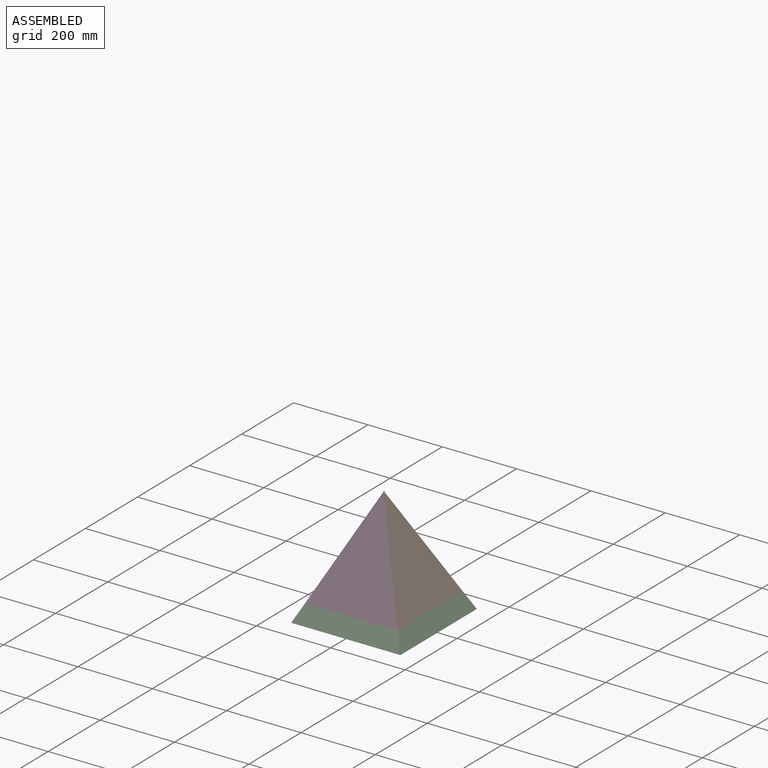
[diagram: assembled view]
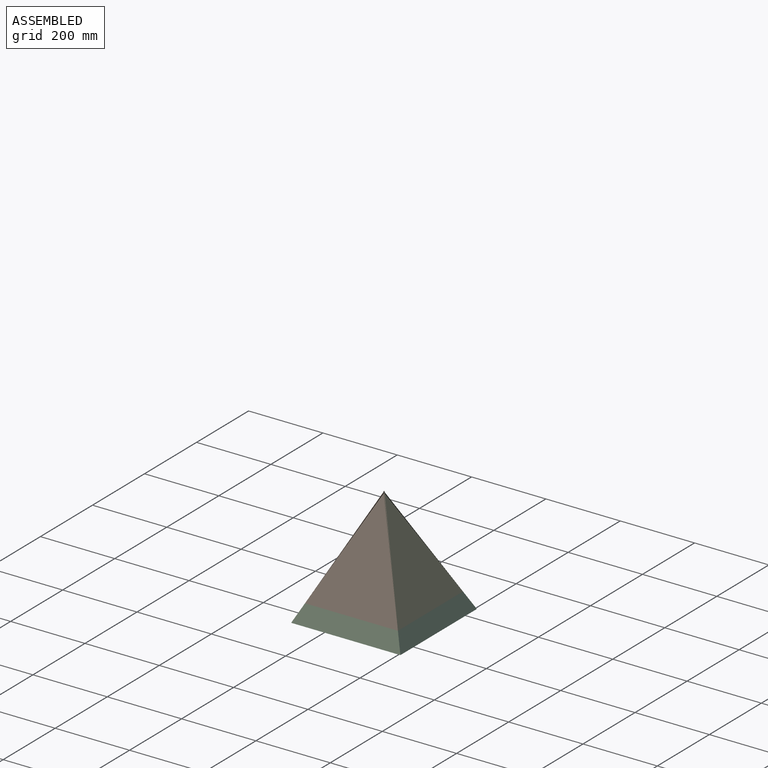
[diagram: assembled view, second angle]
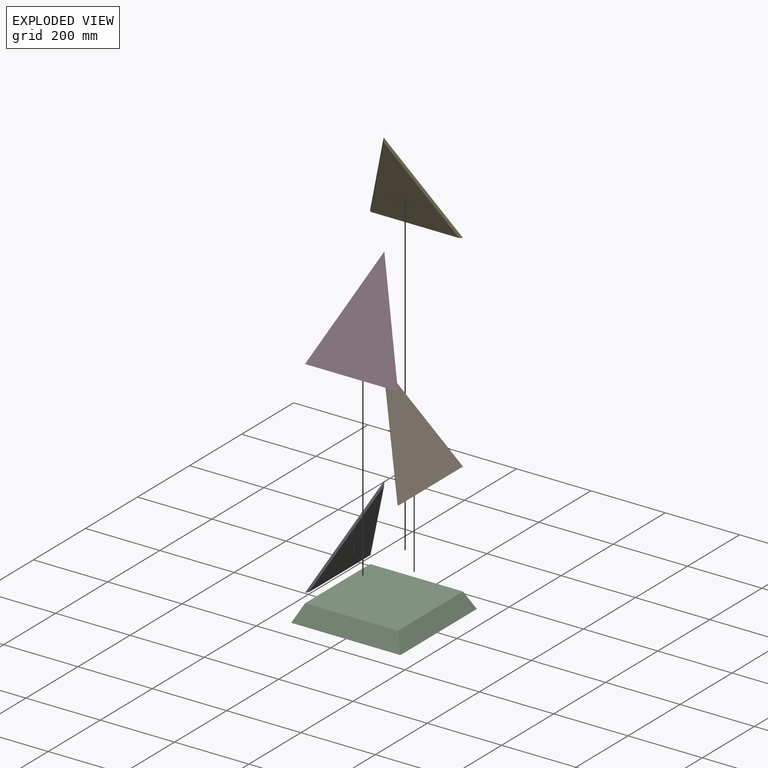
[diagram: exploded view]
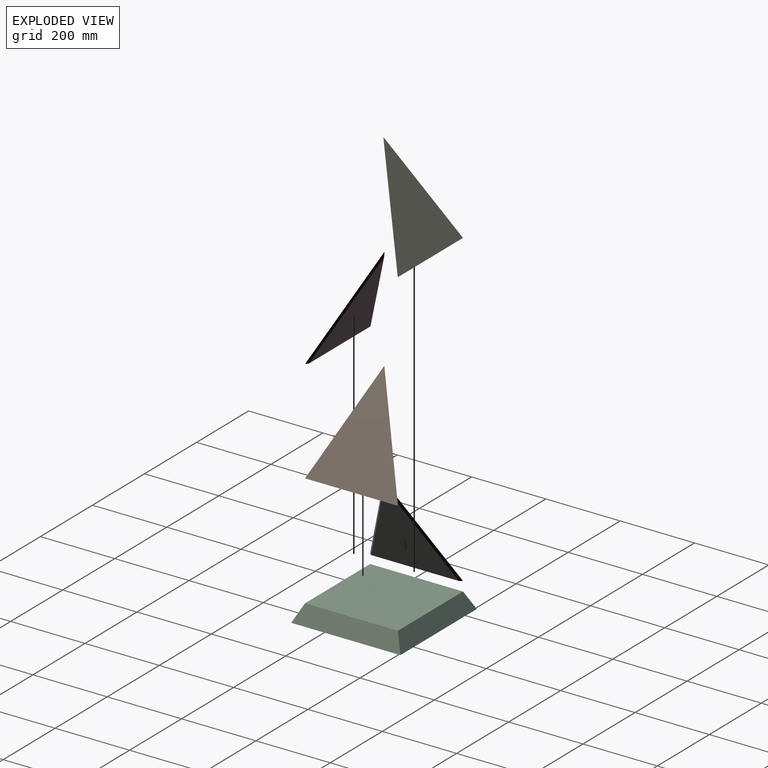
[diagram: exploded view, second angle]
ASSEMBLY  parts=5 mates=4
PART A: 5 faces, bbox 250x5x288.2 mm
  f0: plane 288.17x250mm, normal (0,-1,0), area 36021mm2, adj f2,f3,f4
  f1: plane 273.16x236.98mm, normal (0,1,0), area 32367.8mm2, adj f2,f3,f4
  f2: plane 288.17x125mm, normal (0.65,0.71,0.28), area 2163.3mm2, adj f0,f1,f3,f4
  f3: plane 288.17x125mm, normal (-0.65,0.71,0.28), area 2163.3mm2, adj f0,f1,f2,f4
  f4: plane 250x5mm, normal (0,0.44,-0.9), area 1354.5mm2, adj f0,f1,f2,f3
PART B: same geometry as A
PART C: 6 faces, bbox 293.9x293.9x45 mm
  f0: plane 250x250mm, normal (0,0,1), area 62500mm2, adj f1,f3,f4,f5
  f1: plane 293.9x45mm, normal (-0.9,0,0.44), area 13615.6mm2, adj f0,f2,f4,f5
  f2: plane 293.9x293.9mm, normal (0,0,-1), area 86374.8mm2, adj f1,f3,f4,f5
  f3: plane 293.9x45mm, normal (0.9,0,0.44), area 13615.6mm2, adj f0,f2,f4,f5
  f4: plane 293.9x45mm, normal (0,-0.9,0.44), area 13615.6mm2, adj f0,f1,f2,f3
  f5: plane 293.9x45mm, normal (0,0.9,0.44), area 13615.6mm2, adj f0,f1,f2,f3
PART D: same geometry as A
PART E: same geometry as A
PLACE A rot(axis=(-0.22,0.22,-0.95),92.9deg) t=(-294.87,-117.32,-4.67)mm
PLACE B rot(axis=(-0.22,-0.22,0.95),92.9deg) t=(-53.86,-117.32,-4.67)mm
PLACE C t=(-179.09,7.68,86.47)mm fixed
PLACE D rot(axis=(-1,0,0),26deg) t=(-174.36,-237.83,-4.67)mm
PLACE E rot(axis=(0,-0.22,0.97),180deg) t=(-174.36,3.19,-4.67)mm
MATE planar C.f0 <-> D.f4  axis (0,0,1) through (-174.36,-242.32,-2.48)mm
MATE planar C.f0 <-> B.f4  axis (0,0,1) through (-49.36,-117.32,-2.48)mm
MATE planar C.f0 <-> E.f4  axis (0,0,1) through (-174.36,7.68,-2.48)mm
MATE planar C.f0 <-> A.f4  axis (0,0,1) through (-299.36,-117.32,-2.48)mm
